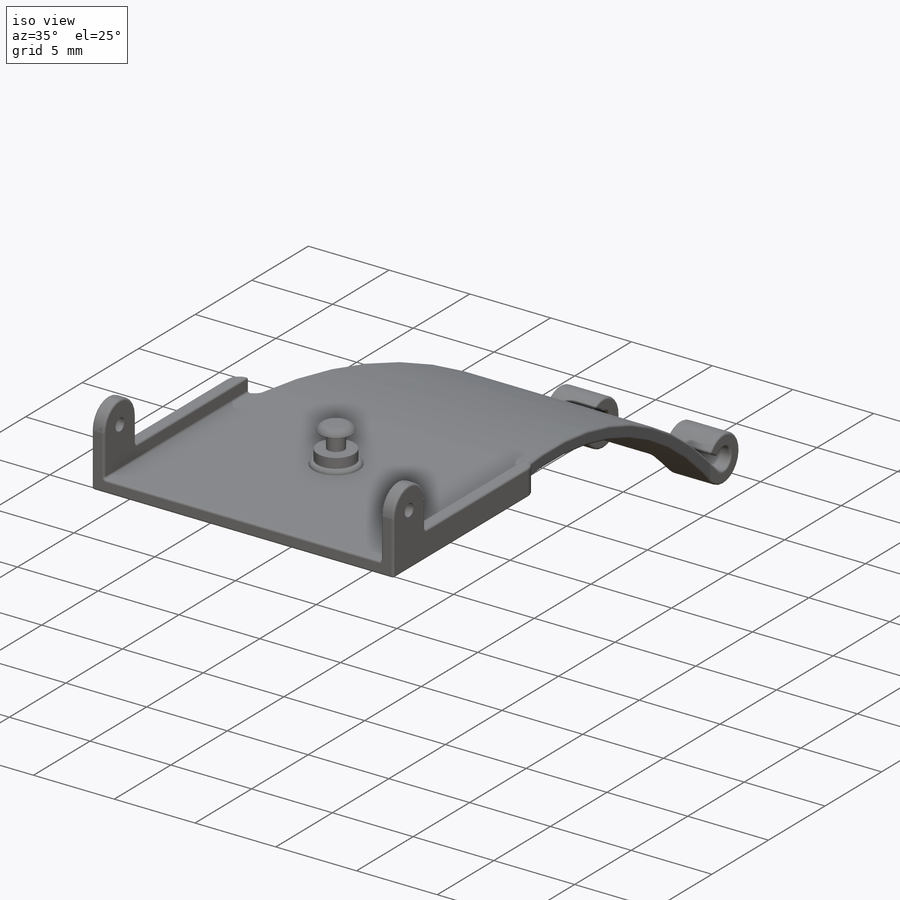
[diagram: iso view]
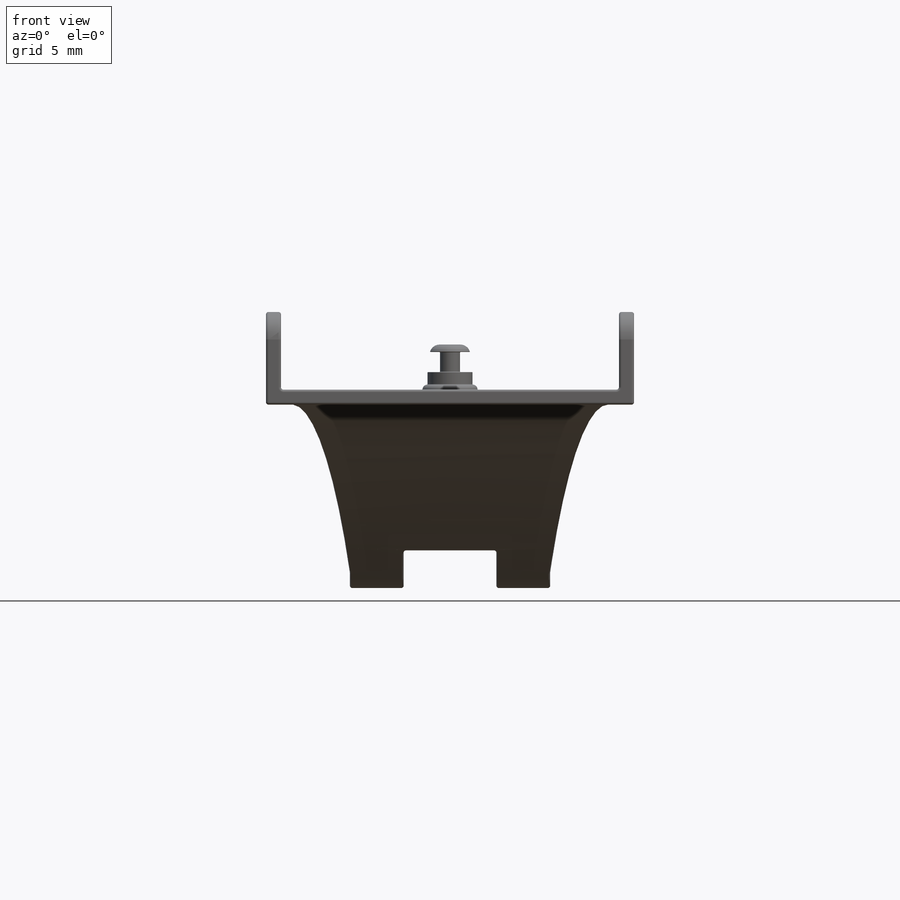
[diagram: front view]
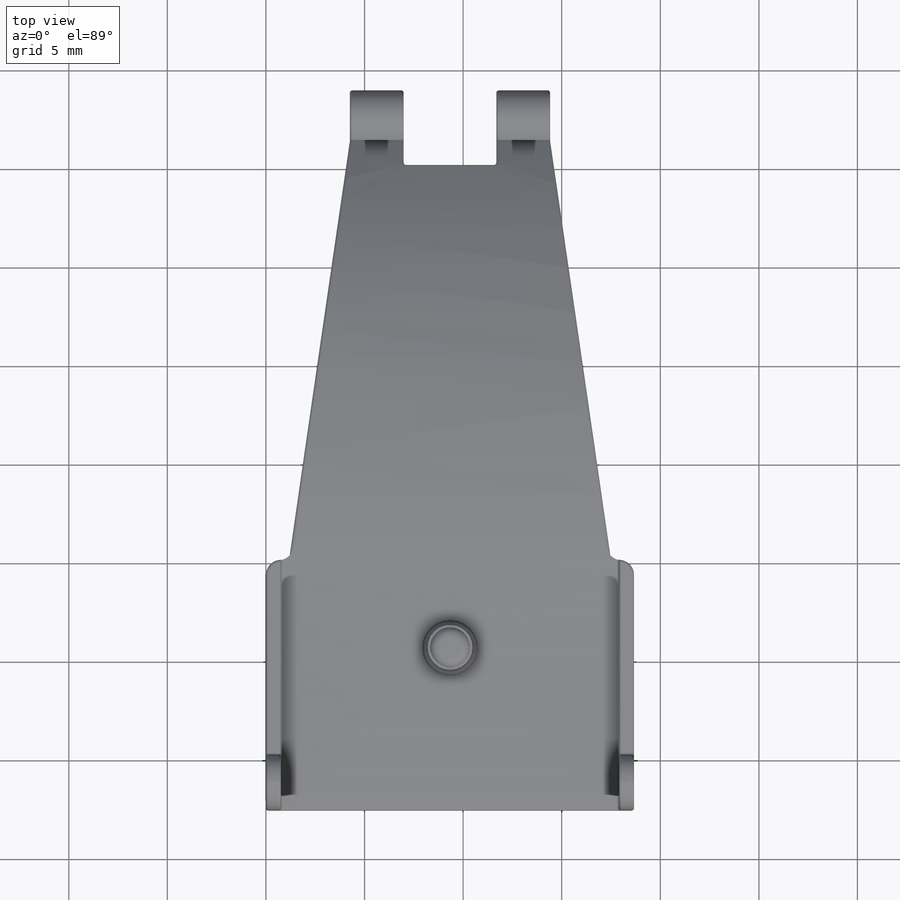
[diagram: top view]
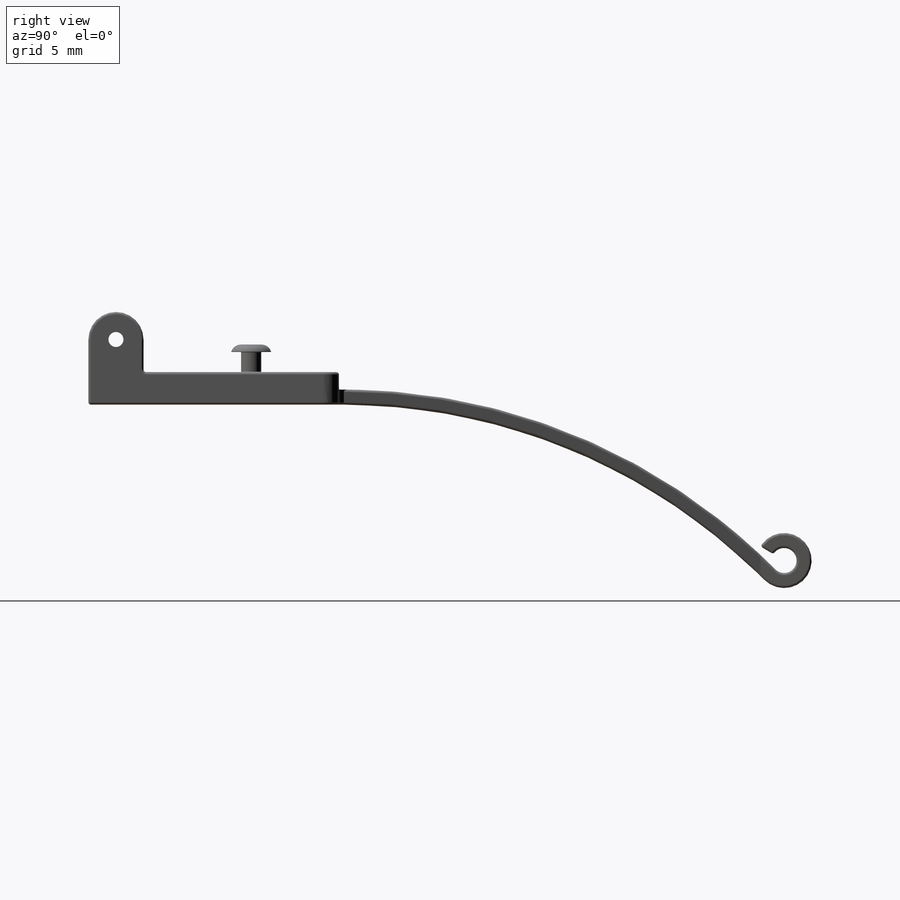
[diagram: right view]
SOLIDWORKS PART (.sldprt)
format: sldprt  version: not decoded by parser v0  size: 671,744 bytes
history: native  units: mm
features: sketch x11, extrude x8, fillet x8, cut_extrude x3, material x1, plane x1 (+11 scaffold rows collapsed)
feature tree (43):
  scaffold x11  (default folders/planes/origin — collapsed)
  material  "Material <not specified>"
  sketch  "Sketch1"  dims[D1=18.669mm D2=12.7mm]
  extrude  "Extrude1"  Depth=0.762mm
  sketch  "Sketch2"  dims[D1=2.794mm D2=2.794mm D3=0.762mm D4=0.762mm]
  extrude  "Extrude2"  Depth=3.937mm
  fillet  "Fillet1"  Radius=1.397mm
  sketch  "Sketch3"  dims[D1=0.762mm]
  cut_extrude  "Extrude3"  [1 undecoded]
  sketch  "Sketch4"
  extrude  "Extrude4"  Depth=0.889mm
  plane  "Plane1"
  sketch  "Sketch5"  dims[D6=1.397mm D1=8.89mm D2=34.29mm D4=0.254mm D7=0.762mm D3=0.762mm D5=0.762mm]
  extrude  "Extrude5"  Depth=16.256mm
  sketch  "Sketch6"  dims[D1=10.16mm D2=3.048mm]
  cut_extrude  "Extrude6"  [1 undecoded]
  sketch  "Sketch7"  dims[D1=4.699mm D2=3.81mm]
  cut_extrude  "Extrude7"  [1 undecoded]
  fillet  "Fillet5"  Radius=0.762mm
  fillet  "Fillet6"  Radius=0.762mm
  fillet  "Fillet8"  Radius=0.127mm
  sketch  "Sketch8"  dims[D1=2.794mm D2=4.699mm]
  extrude  "Extrude8"  Depth=0.254mm
  fillet  "Fillet9"  Radius=0.254mm
  sketch  "Sketch9"  dims[D1=2.032mm]
  extrude  "Extrude9"  Depth=0.635mm
  sketch  "Sketch11"  dims[D1=1.016mm]
  extrude  "Extrude10"  Depth=1.016mm
  sketch  "Sketch12"  dims[D1=2.032mm]
  extrude  "Extrude11"  Depth=0.381mm
  fillet  "Fillet10"  Radius=0.508mm
  fillet  "Fillet11"  Radius=0.0254mm
  fillet  "Fillet12"  Radius=0.0254mm
decode coverage: 26 of 30 modeling features carry decoded parameters
note: 3 parameter values undecoded
summary: no parameter record found for 3 features
note: suppression state not decoded; provenance and decode notes live in map.json
